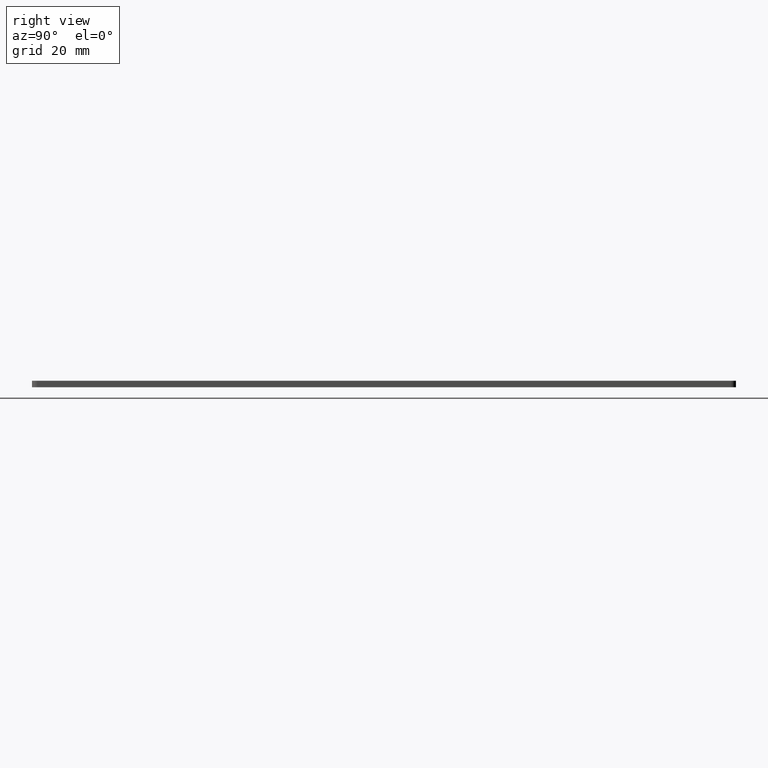
[diagram: clean part render]
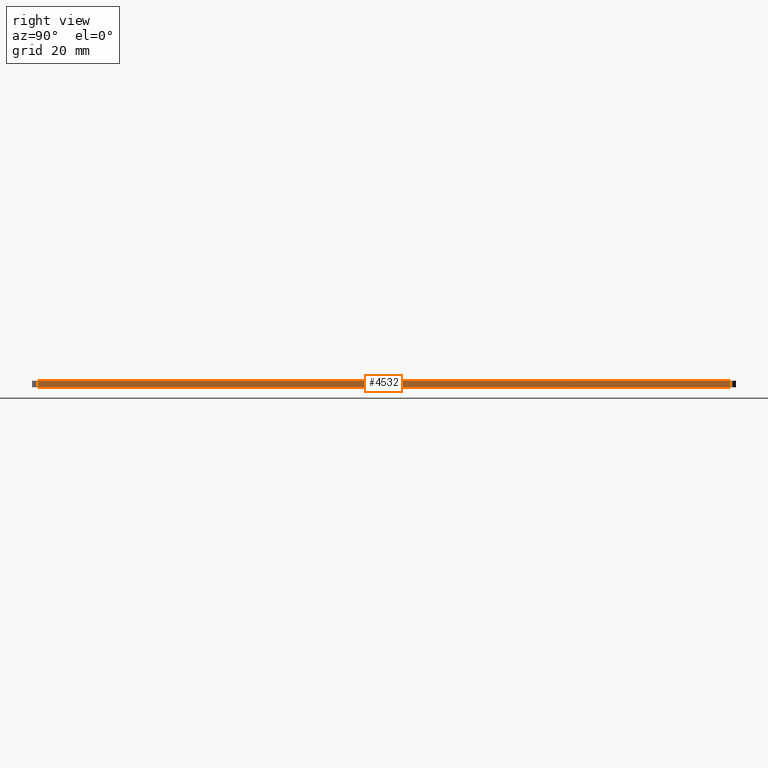
[diagram: same view with one face highlighted and labeled with its STEP entity id]
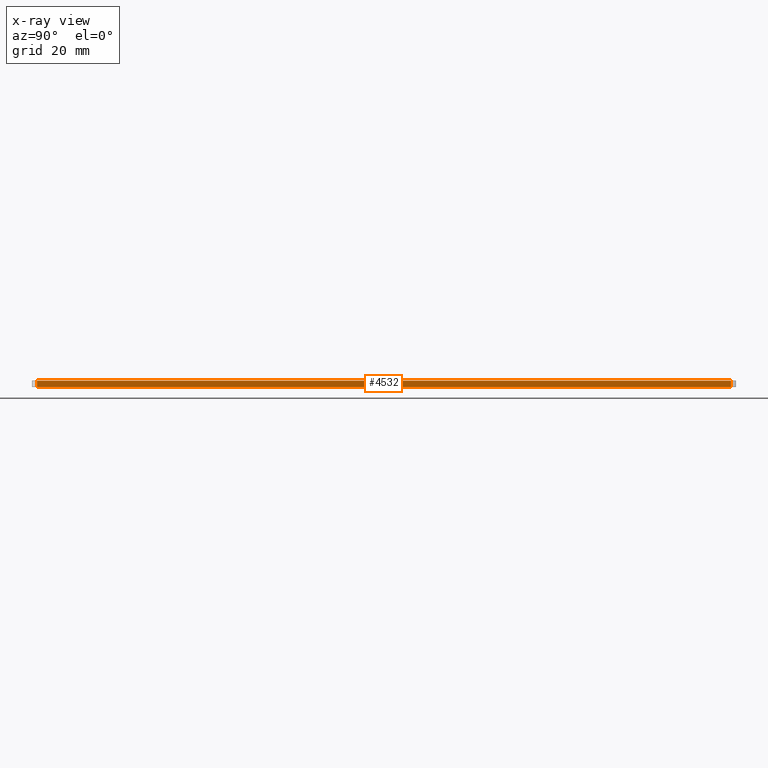
[diagram: x-ray of the same camera — body ghosted, the highlighted face saturated]
A machine part, right view. The second image highlights one B-rep face of the part: STEP entity #4532.
The next image is the same camera in x-ray: the body ghosted, the highlighted face saturated — about 0% of this face is hidden behind the body in this view.
In plain terms, the highlighted planar face has unit normal (1, 0, -0).
Its self-contained STEP definition (entity closure, byte-faithful):
#463 = LINE ( 'NONE', #3320, #13089 ) ;
#1004 = CARTESIAN_POINT ( 'NONE',  ( 23.25000000000000400, -81.29999999999998300, 0.0000000000000000000 ) ) ;
#1233 = EDGE_LOOP ( 'NONE', ( #2022, #3663, #8900, #6988 ) ) ;
#1909 = CARTESIAN_POINT ( 'NONE',  ( 23.24999999999998600, 81.30000000000001100, 0.0000000000000000000 ) ) ;
#2022 = ORIENTED_EDGE ( 'NONE', *, *, #7375, .T. ) ;
#2246 = DIRECTION ( 'NONE',  ( 1.000000000000000000, 1.051347561198064800E-016, -0.0000000000000000000 ) ) ;
#2418 = LINE ( 'NONE', #10803, #12322 ) ;
#3185 = DIRECTION ( 'NONE',  ( 0.0000000000000000000, -0.0000000000000000000, 1.000000000000000000 ) ) ;
#3264 = DIRECTION ( 'NONE',  ( -1.051347561198064800E-016, 1.000000000000000000, 0.0000000000000000000 ) ) ;
#3290 = AXIS2_PLACEMENT_3D ( 'NONE', #7270, #2246, #3264 ) ;
#3313 = VERTEX_POINT ( 'NONE', #3751 ) ;
#3320 = CARTESIAN_POINT ( 'NONE',  ( 23.24999999999998600, 81.30000000000001100, 1.500000000000000000 ) ) ;
#3512 = VECTOR ( 'NONE', #4790, 1000.000000000000000 ) ;
#3522 = VERTEX_POINT ( 'NONE', #1909 ) ;
#3663 = ORIENTED_EDGE ( 'NONE', *, *, #5696, .T. ) ;
#3751 = CARTESIAN_POINT ( 'NONE',  ( 23.24999999999998600, 81.30000000000001100, 1.500000000000000000 ) ) ;
#4530 = CARTESIAN_POINT ( 'NONE',  ( 23.25000000000000400, -81.29999999999998300, 0.0000000000000000000 ) ) ;
#4532 = ADVANCED_FACE ( 'NONE', ( #7933 ), #7367, .T. ) ;
#4790 = DIRECTION ( 'NONE',  ( 1.051347561198065000E-016, -1.000000000000000000, 0.0000000000000000000 ) ) ;
#4934 = VERTEX_POINT ( 'NONE', #6791 ) ;
#5696 = EDGE_CURVE ( 'NONE', #4934, #11352, #12026, .T. ) ;
#6791 = CARTESIAN_POINT ( 'NONE',  ( 23.25000000000000400, -81.29999999999998300, 1.500000000000000000 ) ) ;
#6895 = DIRECTION ( 'NONE',  ( 1.051347561198065000E-016, -1.000000000000000000, 0.0000000000000000000 ) ) ;
#6988 = ORIENTED_EDGE ( 'NONE', *, *, #11615, .T. ) ;
#7270 = CARTESIAN_POINT ( 'NONE',  ( 23.24999999999998600, 82.50000000000001400, 1.500000000000000000 ) ) ;
#7367 = PLANE ( 'NONE',  #3290 ) ;
#7375 = EDGE_CURVE ( 'NONE', #3313, #4934, #2418, .T. ) ;
#7933 = FACE_OUTER_BOUND ( 'NONE', #1233, .T. ) ;
#8084 = VECTOR ( 'NONE', #9934, 1000.000000000000000 ) ;
#8900 = ORIENTED_EDGE ( 'NONE', *, *, #11195, .F. ) ;
#9934 = DIRECTION ( 'NONE',  ( 0.0000000000000000000, 0.0000000000000000000, -1.000000000000000000 ) ) ;
#10708 = LINE ( 'NONE', #11859, #3512 ) ;
#10803 = CARTESIAN_POINT ( 'NONE',  ( 23.24999999999998600, 82.50000000000001400, 1.500000000000000000 ) ) ;
#11195 = EDGE_CURVE ( 'NONE', #3522, #11352, #10708, .T. ) ;
#11352 = VERTEX_POINT ( 'NONE', #4530 ) ;
#11615 = EDGE_CURVE ( 'NONE', #3522, #3313, #463, .T. ) ;
#11859 = CARTESIAN_POINT ( 'NONE',  ( 23.24999999999998600, 82.50000000000001400, 0.0000000000000000000 ) ) ;
#12026 = LINE ( 'NONE', #1004, #8084 ) ;
#12322 = VECTOR ( 'NONE', #6895, 1000.000000000000000 ) ;
#13089 = VECTOR ( 'NONE', #3185, 1000.000000000000000 ) ;